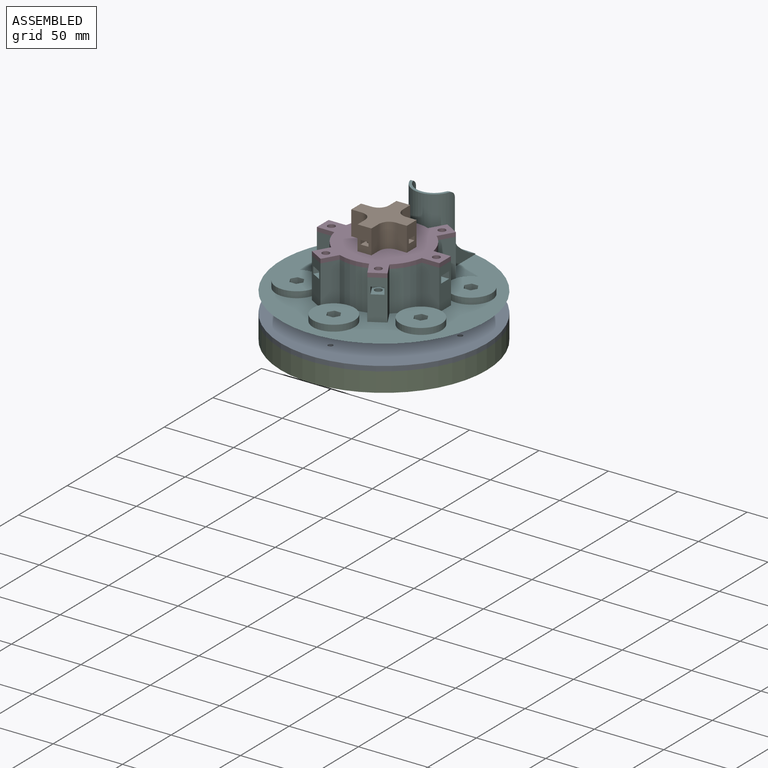
[diagram: assembled view]
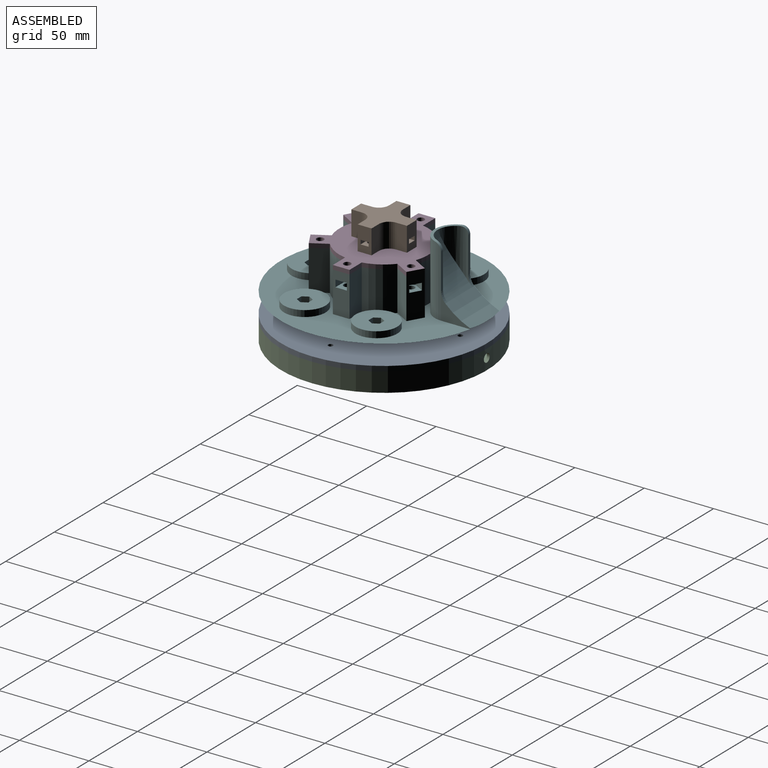
[diagram: assembled view, second angle]
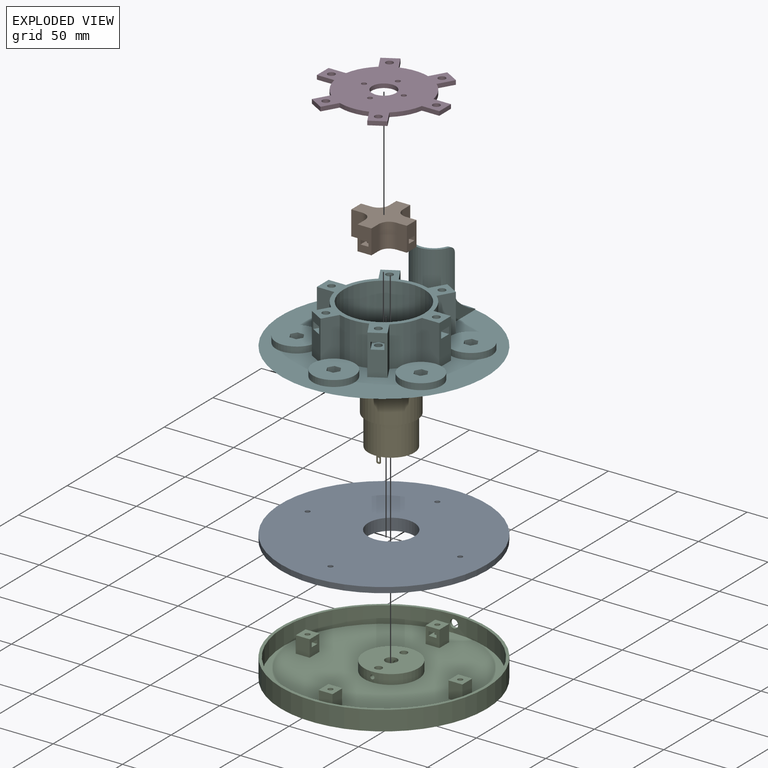
[diagram: exploded view]
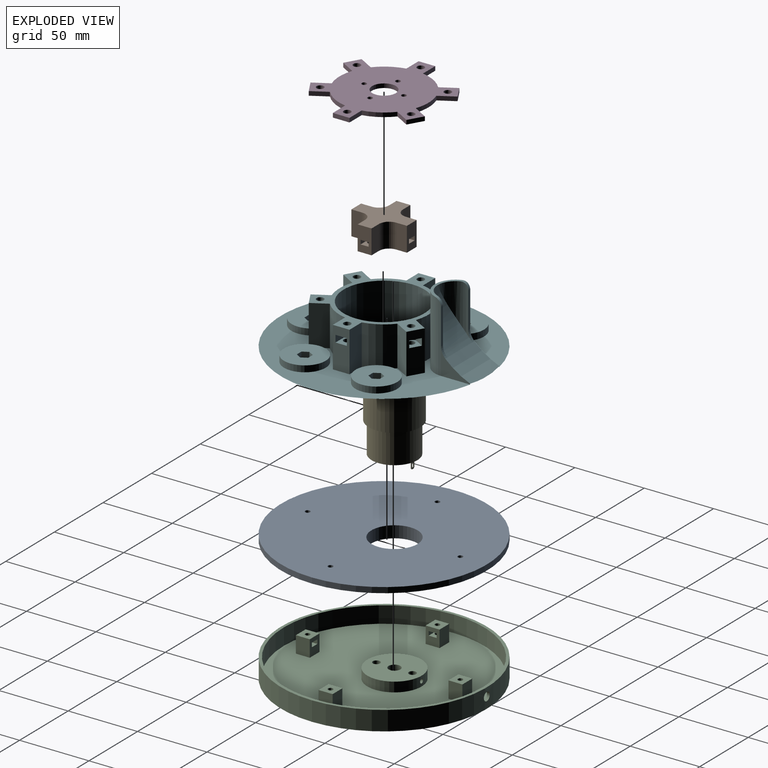
[diagram: exploded view, second angle]
ASSEMBLY  parts=6 mates=5
PART A: 10 faces, bbox 148.2x148.2x8.5 mm
  f0: cylinder r=74.1mm len=148.2mm, axis (0,0,-1), area 1862.3mm2, adj f2,f5
  f1: cylinder r=16.65mm len=33.3mm, axis (0,0,-1), area 889.2mm2, adj f3,f5
  f2: plane 148.2x148.2mm, normal (0,0,-1), area 16118.7mm2, adj f0,f4,f6,f7,f8,f9
  f3: plane 37.3x37.3mm, normal (0,0,-1), area 221.8mm2, adj f1,f4
  f4: cylinder r=18.65mm len=37.3mm, axis (0,0,1), area 527.3mm2, adj f2,f3
  f5: plane 148.2x148.2mm, normal (0,0,1), area 16340.5mm2, adj f0,f1,f6,f7,f8,f9
  f6: cylinder r=1.75mm len=4mm, axis (0,0,1), area 44mm2, adj f2,f5
  f7: cylinder r=1.75mm len=4mm, axis (0,0,1), area 44mm2, adj f2,f5
  f8: cylinder r=1.75mm len=4mm, axis (0,0,1), area 44mm2, adj f2,f5
  f9: cylinder r=1.75mm len=4mm, axis (0,0,1), area 44mm2, adj f2,f5
PART B: 62 faces, bbox 40x40x17.5 mm
  f0: plane 17.5x10mm, normal (1,0,0), area 157.6mm2, adj f4,f9,f10,f11,f22,f23,f24,f27
  f1: plane 17.5x10mm, normal (0,-1,0), area 157.6mm2, adj f4,f9,f12,f13,f46,f47,f48,f51
  f2: plane 17.5x10mm, normal (-1,0,0), area 157.6mm2, adj f4,f9,f14,f15,f38,f39,f40,f43
  f3: plane 17.5x10mm, normal (0,1,0), area 157.6mm2, adj f4,f9,f16,f17,f30,f31,f32,f35
  f4: plane 40x40mm, normal (0,0,1), area 675.6mm2, adj f0,f1,f2,f3,f8,f10,f11,f12
  f5: plane 6.3x5.5mm, normal (0,0,1), area 28.9mm2, adj f7,f8
  f6: plane 4.2x0.8mm, normal (0,0,1), area 2.3mm2, adj f7,f8
  f7: plane 12x4.2mm, normal (0,-1,0), area 50.3mm2, adj f5,f6,f8
  f8: cylinder r=3.15mm len=14.5mm, axis (0,0,1), area 231.9mm2, adj f4,f5,f6,f7
  f9: plane 40x40mm, normal (0,0,-1), area 745.2mm2, adj f0,f1,f2,f3,f10,f11,f12,f13
  f10: plane 17.5x7.55mm, normal (0,1,0), area 132.1mm2, adj f0,f4,f9,f55
  f11: plane 17.5x7.55mm, normal (0,-1,0), area 132.1mm2, adj f0,f4,f9,f57
  f12: plane 17.5x7.55mm, normal (-1,0,0), area 132.1mm2, adj f1,f4,f9,f60
  f13: plane 17.5x7.55mm, normal (1,0,0), area 132.1mm2, adj f1,f4,f9,f56
  f14: plane 17.5x7.55mm, normal (0,1,0), area 132.1mm2, adj f2,f4,f9,f58
  f15: plane 17.5x7.55mm, normal (0,-1,0), area 132.1mm2, adj f2,f4,f9,f61
  f16: plane 17.5x7.55mm, normal (1,0,0), area 132.1mm2, adj f3,f4,f9,f54
  f17: plane 17.5x7.55mm, normal (-1,0,0), area 132.1mm2, adj f3,f4,f9,f59
  f18: cylinder r=1.75mm len=5mm, axis (0,0,1), area 55mm2, adj f4,f47
  f19: cylinder r=1.75mm len=5mm, axis (0,0,1), area 55mm2, adj f4,f39
  f20: cylinder r=1.75mm len=5mm, axis (0,0,1), area 55mm2, adj f4,f31
  f21: cylinder r=1.75mm len=5mm, axis (0,0,1), area 55mm2, adj f4,f23
  f22: plane 9.02x5.8mm, normal (0,0,1), area 37.8mm2, adj f0,f24,f25,f26,f27,f29
  f23: plane 9.02x5.8mm, normal (0,0,-1), area 37.8mm2, adj f0,f21,f24,f25,f26,f27
  f24: plane 7.34x3mm, normal (0,-1,0), area 22mm2, adj f0,f22,f23,f25
  f25: plane 3x2.9mm, normal (0.87,-0.5,0), area 10mm2, adj f22,f23,f24,f26
  f26: plane 3x2.9mm, normal (0.87,0.5,0), area 10mm2, adj f22,f23,f25,f27
  f27: plane 7.34x3mm, normal (0,1,0), area 22mm2, adj f0,f22,f23,f26
  f28: plane 3.5x3.5mm, normal (0,0,1), area 9.6mm2, adj f29
  f29: cylinder r=1.75mm len=8mm, axis (0,0,1), area 88mm2, adj f22,f28
  f30: plane 9.02x5.8mm, normal (0,0,1), area 37.8mm2, adj f3,f32,f33,f34,f35,f37
  f31: plane 9.02x5.8mm, normal (0,0,-1), area 37.8mm2, adj f3,f20,f32,f33,f34,f35
  f32: plane 7.34x3mm, normal (1,0,0), area 22mm2, adj f3,f30,f31,f33
  f33: plane 3x2.9mm, normal (0.5,0.87,0), area 10mm2, adj f30,f31,f32,f34
  f34: plane 3x2.9mm, normal (-0.5,0.87,0), area 10mm2, adj f30,f31,f33,f35
  f35: plane 7.34x3mm, normal (-1,0,0), area 22mm2, adj f3,f30,f31,f34
  f36: plane 3.5x3.5mm, normal (0,0,1), area 9.6mm2, adj f37
  f37: cylinder r=1.75mm len=8mm, axis (0,0,1), area 88mm2, adj f30,f36
  f38: plane 9.02x5.8mm, normal (0,0,1), area 37.8mm2, adj f2,f40,f41,f42,f43,f45
  f39: plane 9.02x5.8mm, normal (0,0,-1), area 37.8mm2, adj f2,f19,f40,f41,f42,f43
  f40: plane 7.34x3mm, normal (0,1,0), area 22mm2, adj f2,f38,f39,f41
  f41: plane 3x2.9mm, normal (-0.87,0.5,0), area 10mm2, adj f38,f39,f40,f42
  f42: plane 3x2.9mm, normal (-0.87,-0.5,0), area 10mm2, adj f38,f39,f41,f43
  f43: plane 7.34x3mm, normal (0,-1,0), area 22mm2, adj f2,f38,f39,f42
  f44: plane 3.5x3.5mm, normal (0,0,1), area 9.6mm2, adj f45
  f45: cylinder r=1.75mm len=8mm, axis (0,0,1), area 88mm2, adj f38,f44
  f46: plane 9.02x5.8mm, normal (0,0,1), area 37.8mm2, adj f1,f48,f49,f50,f51,f53
  f47: plane 9.02x5.8mm, normal (0,0,-1), area 37.8mm2, adj f1,f18,f48,f49,f50,f51
  f48: plane 7.34x3mm, normal (-1,0,0), area 22mm2, adj f1,f46,f47,f49
  f49: plane 3x2.9mm, normal (-0.5,-0.87,0), area 10mm2, adj f46,f47,f48,f50
  f50: plane 3x2.9mm, normal (0.5,-0.87,0), area 10mm2, adj f46,f47,f49,f51
  f51: plane 7.34x3mm, normal (1,0,0), area 22mm2, adj f1,f46,f47,f50
  f52: plane 3.5x3.5mm, normal (0,0,1), area 9.6mm2, adj f53
  f53: cylinder r=1.75mm len=8mm, axis (0,0,1), area 88mm2, adj f46,f52
  f54: cylinder r=8mm len=17.5mm, axis (0,0,-1), area 103.1mm2, adj f4,f9,f16,f55
  f55: cylinder r=8mm len=17.5mm, axis (0,0,-1), area 103.1mm2, adj f4,f9,f10,f54
  f56: cylinder r=8mm len=17.5mm, axis (0,0,-1), area 103.1mm2, adj f4,f9,f13,f57
  f57: cylinder r=8mm len=17.5mm, axis (0,0,-1), area 103.1mm2, adj f4,f9,f11,f56
  f58: cylinder r=8mm len=17.5mm, axis (0,0,-1), area 103.1mm2, adj f4,f9,f14,f59
  f59: cylinder r=8mm len=17.5mm, axis (0,0,-1), area 103.1mm2, adj f4,f9,f17,f58
  f60: cylinder r=8mm len=17.5mm, axis (0,0,-1), area 103.1mm2, adj f4,f9,f12,f61
  f61: cylinder r=8mm len=17.5mm, axis (0,0,-1), area 103.1mm2, adj f4,f9,f15,f60
PART C: 67 faces, bbox 148.2x148.2x14 mm
  f0: cylinder r=74.1mm len=148.2mm, axis (0,0,-1), area 6489.9mm2, adj f11,f12,f66
  f1: cylinder r=72.1mm len=144.2mm, axis (0,0,1), area 5407.9mm2, adj f6,f12,f66
  f2: plane 12x10mm, normal (0,1,0), area 102.9mm2, adj f6,f14,f15,f16,f48,f49,f52,f53
  f3: plane 12x10mm, normal (0,-1,0), area 102.9mm2, adj f6,f18,f19,f21,f42,f45,f46,f47
  f4: plane 12x10mm, normal (1,0,0), area 102.9mm2, adj f6,f22,f24,f25,f36,f39,f40,f41
  f5: plane 12x10mm, normal (-1,0,0), area 102.9mm2, adj f6,f26,f27,f28,f30,f31,f34,f35
  f6: plane 144.2x144.2mm, normal (0,0,1), area 14730.6mm2, adj f1,f2,f3,f4,f5,f10,f15,f16
  f7: cylinder r=2.6mm len=9mm, axis (0,0,-1), area 132.3mm2, adj f11,f13,f63,f65
  f8: cylinder r=2.6mm len=9mm, axis (0,0,-1), area 132.3mm2, adj f11,f13,f62,f64
  f9: cylinder r=4.25mm len=9mm, axis (0,0,-1), area 226mm2, adj f11,f13,f64,f65
  f10: cylinder r=19.55mm len=39.1mm, axis (0,0,1), area 845.7mm2, adj f6,f13,f62,f63
  f11: plane 148.2x148.2mm, normal (0,0,-1), area 17112.2mm2, adj f0,f7,f8,f9,f55,f57,f59,f61
  f12: plane 148.2x148.2mm, normal (0,0,1), area 918.6mm2, adj f0,f1
  f13: plane 39.1x39.1mm, normal (0,0,1), area 1101.5mm2, adj f7,f8,f9,f10
  f14: plane 10x10mm, normal (0,0,1), area 90.4mm2, adj f2,f15,f16,f17,f54
  f15: plane 12x10mm, normal (-1,0,0), area 120mm2, adj f2,f6,f14,f17
  f16: plane 12x10mm, normal (1,0,0), area 120mm2, adj f2,f6,f14,f17
  f17: plane 12x10mm, normal (0,-1,0), area 120mm2, adj f6,f14,f15,f16
  f18: plane 10x10mm, normal (0,0,1), area 90.4mm2, adj f3,f19,f20,f21,f56
  f19: plane 12x10mm, normal (1,0,0), area 120mm2, adj f3,f6,f18,f20
  f20: plane 12x10mm, normal (0,1,0), area 120mm2, adj f6,f18,f19,f21
  f21: plane 12x10mm, normal (-1,0,0), area 120mm2, adj f3,f6,f18,f20
  f22: plane 10x10mm, normal (0,0,1), area 90.4mm2, adj f4,f23,f24,f25,f58
  f23: plane 12x10mm, normal (-1,0,0), area 120mm2, adj f6,f22,f24,f25
  f24: plane 12x10mm, normal (0,-1,0), area 120mm2, adj f4,f6,f22,f23
  f25: plane 12x10mm, normal (0,1,0), area 120mm2, adj f4,f6,f22,f23
  f26: plane 10x10mm, normal (0,0,1), area 90.4mm2, adj f5,f27,f28,f29,f60
  f27: plane 12x10mm, normal (0,-1,0), area 120mm2, adj f5,f6,f26,f29
  f28: plane 12x10mm, normal (0,1,0), area 120mm2, adj f5,f6,f26,f29
  f29: plane 12x10mm, normal (1,0,0), area 120mm2, adj f6,f26,f27,f28
  f30: plane 6.65x3mm, normal (0,-1,0), area 19.9mm2, adj f5,f33,f34,f35
  f31: plane 6.65x3mm, normal (0,1,0), area 19.9mm2, adj f5,f32,f34,f35
  f32: plane 3x2.85mm, normal (-0.87,0.5,0), area 9.9mm2, adj f31,f33,f34,f35
  f33: plane 3x2.85mm, normal (-0.87,-0.5,0), area 9.9mm2, adj f30,f32,f34,f35
  f34: plane 8.29x5.7mm, normal (0,0,1), area 32.9mm2, adj f5,f30,f31,f32,f33,f61
  f35: plane 8.29x5.7mm, normal (0,0,-1), area 32.9mm2, adj f5,f30,f31,f32,f33,f60
  f36: plane 6.65x3mm, normal (0,-1,0), area 19.9mm2, adj f4,f37,f40,f41
  f37: plane 3x2.85mm, normal (0.87,-0.5,0), area 9.9mm2, adj f36,f38,f40,f41
  f38: plane 3x2.85mm, normal (0.87,0.5,0), area 9.9mm2, adj f37,f39,f40,f41
  f39: plane 6.65x3mm, normal (0,1,0), area 19.9mm2, adj f4,f38,f40,f41
  f40: plane 8.29x5.7mm, normal (0,0,1), area 32.9mm2, adj f4,f36,f37,f38,f39,f59
  f41: plane 8.29x5.7mm, normal (0,0,-1), area 32.9mm2, adj f4,f36,f37,f38,f39,f58
  f42: plane 6.65x3mm, normal (-1,0,0), area 19.9mm2, adj f3,f43,f46,f47
  f43: plane 3x2.85mm, normal (-0.5,-0.87,0), area 9.9mm2, adj f42,f44,f46,f47
  f44: plane 3x2.85mm, normal (0.5,-0.87,0), area 9.9mm2, adj f43,f45,f46,f47
  f45: plane 6.65x3mm, normal (1,0,0), area 19.9mm2, adj f3,f44,f46,f47
  f46: plane 8.29x5.7mm, normal (0,0,1), area 32.9mm2, adj f3,f42,f43,f44,f45,f57
  f47: plane 8.29x5.7mm, normal (0,0,-1), area 32.9mm2, adj f3,f42,f43,f44,f45,f56
  f48: plane 6.65x3mm, normal (-1,0,0), area 19.9mm2, adj f2,f51,f52,f53
  f49: plane 6.65x3mm, normal (1,0,0), area 19.9mm2, adj f2,f50,f52,f53
  f50: plane 3x2.85mm, normal (0.5,0.87,0), area 9.9mm2, adj f49,f51,f52,f53
  f51: plane 3x2.85mm, normal (-0.5,0.87,0), area 9.9mm2, adj f48,f50,f52,f53
  f52: plane 8.29x5.7mm, normal (0,0,1), area 32.9mm2, adj f2,f48,f49,f50,f51,f55
  f53: plane 8.29x5.7mm, normal (0,0,-1), area 32.9mm2, adj f2,f48,f49,f50,f51,f54
  f54: cylinder r=1.75mm len=3.5mm, axis (0,0,1), area 33mm2, adj f14,f53
  f55: cylinder r=1.75mm len=8mm, axis (0,0,1), area 88mm2, adj f11,f52
  f56: cylinder r=1.75mm len=3.5mm, axis (0,0,1), area 33mm2, adj f18,f47
  f57: cylinder r=1.75mm len=8mm, axis (0,0,1), area 88mm2, adj f11,f46
  f58: cylinder r=1.75mm len=3.5mm, axis (0,0,1), area 33mm2, adj f22,f41
  f59: cylinder r=1.75mm len=8mm, axis (0,0,1), area 88mm2, adj f11,f40
  f60: cylinder r=1.75mm len=3.5mm, axis (0,0,1), area 33mm2, adj f26,f35
  f61: cylinder r=1.75mm len=8mm, axis (0,0,1), area 88mm2, adj f11,f34
  f62: cylinder r=1.5mm len=4.43mm, axis (0,-1,0), area 39.1mm2, adj f8,f10
  f63: cylinder r=1.5mm len=4.43mm, axis (0,-1,0), area 39.1mm2, adj f7,f10
  f64: cylinder r=1.5mm len=6.9mm, axis (0,-1,0), area 61.4mm2, adj f8,f9
  f65: cylinder r=1.5mm len=6.9mm, axis (0,-1,0), area 61.4mm2, adj f7,f9
  f66: cylinder r=3mm len=6mm, axis (0,-1,0), area 37.7mm2, adj f0,f1
PART D: 37 faces, bbox 88.2x82.4x3 mm
  f0: plane 12.57x3mm, normal (0,1,0), area 37.7mm2, adj f1,f24,f25,f26
  f1: cylinder r=32.1mm len=18.31mm, axis (0,0,-1), area 64.6mm2, adj f0,f2,f25,f26
  f2: plane 10.88x6.28mm, normal (0.87,-0.5,0), area 37.7mm2, adj f1,f3,f25,f26
  f3: plane 10.39x6mm, normal (0.5,0.87,0), area 36mm2, adj f2,f4,f25,f26
  f4: plane 10.88x6.28mm, normal (-0.87,0.5,0), area 37.7mm2, adj f3,f5,f25,f26
  f5: cylinder r=32.1mm len=21.14mm, axis (0,0,-1), area 64.6mm2, adj f4,f6,f25,f26
  f6: plane 10.88x6.28mm, normal (0.87,0.5,0), area 37.7mm2, adj f5,f7,f25,f26
  f7: plane 10.39x6mm, normal (-0.5,0.87,0), area 36mm2, adj f6,f8,f25,f26
  f8: plane 10.88x6.28mm, normal (-0.87,-0.5,0), area 37.7mm2, adj f7,f9,f25,f26
  f9: cylinder r=32.1mm len=18.31mm, axis (0,0,-1), area 64.6mm2, adj f8,f10,f25,f26
  f10: plane 12.57x3mm, normal (0,1,0), area 37.7mm2, adj f9,f11,f25,f26
  f11: plane 12x3mm, normal (-1,0,0), area 36mm2, adj f10,f12,f25,f26
  f12: plane 12.57x3mm, normal (0,-1,0), area 37.7mm2, adj f11,f13,f25,f26
  f13: cylinder r=32.1mm len=18.31mm, axis (0,0,-1), area 64.6mm2, adj f12,f14,f25,f26
  f14: plane 10.88x6.28mm, normal (-0.87,0.5,0), area 37.7mm2, adj f13,f15,f25,f26
  f15: plane 10.39x6mm, normal (-0.5,-0.87,0), area 36mm2, adj f14,f16,f25,f26
  f16: plane 10.88x6.28mm, normal (0.87,-0.5,0), area 37.7mm2, adj f15,f17,f25,f26
  f17: cylinder r=32.1mm len=21.14mm, axis (0,0,-1), area 64.6mm2, adj f16,f18,f25,f26
  f18: plane 10.88x6.28mm, normal (-0.87,-0.5,0), area 37.7mm2, adj f17,f19,f25,f26
  f19: plane 10.39x6mm, normal (0.5,-0.87,0), area 36mm2, adj f18,f20,f25,f26
  f20: plane 10.88x6.28mm, normal (0.87,0.5,0), area 37.7mm2, adj f19,f21,f25,f26
  f21: cylinder r=32.1mm len=18.31mm, axis (0,0,-1), area 64.6mm2, adj f20,f22,f25,f26
  f22: plane 12.57x3mm, normal (0,-1,0), area 37.7mm2, adj f21,f24,f25,f26
  f23: cylinder r=8.57mm len=17.14mm, axis (0,0,-1), area 161.6mm2, adj f25,f26
  f24: plane 12x3mm, normal (1,0,0), area 36mm2, adj f0,f22,f25,f26
  f25: plane 88.2x82.38mm, normal (0,0,1), area 3717.9mm2, adj f0,f1,f2,f3,f4,f5,f6,f7
  f26: plane 88.2x82.38mm, normal (0,0,-1), area 3717.9mm2, adj f0,f1,f2,f3,f4,f5,f6,f7
  f27: cylinder r=2.6mm len=5.2mm, axis (0,0,1), area 49mm2, adj f25,f26
  f28: cylinder r=2.6mm len=5.2mm, axis (0,0,1), area 49mm2, adj f25,f26
  f29: cylinder r=2.6mm len=5.2mm, axis (0,0,1), area 49mm2, adj f25,f26
  f30: cylinder r=2.6mm len=5.2mm, axis (0,0,1), area 49mm2, adj f25,f26
  f31: cylinder r=2.6mm len=5.2mm, axis (0,0,1), area 49mm2, adj f25,f26
  f32: cylinder r=2.6mm len=5.2mm, axis (0,0,1), area 49mm2, adj f25,f26
  f33: cylinder r=1.75mm len=3.5mm, axis (0,0,1), area 33mm2, adj f25,f26
  f34: cylinder r=1.75mm len=3.5mm, axis (0,0,1), area 33mm2, adj f25,f26
  f35: cylinder r=1.75mm len=3.5mm, axis (0,0,1), area 33mm2, adj f25,f26
  f36: cylinder r=1.75mm len=3.5mm, axis (0,0,1), area 33mm2, adj f25,f26
PART E: 61 faces, bbox 37.1x37.1x76 mm
  f0: plane 7.98x3.34mm, normal (0,0,-1), area 20.1mm2, adj f8,f34
  f1: plane 4.8x4.8mm, normal (0,0,-1), area 16.6mm2, adj f11,f17,f18,f19,f20
  f2: plane 4.8x4.8mm, normal (0,0,-1), area 16.6mm2, adj f10,f12,f13,f14,f15
  f3: cylinder r=18.55mm len=37.1mm, axis (0,0,1), area 3030.4mm2, adj f4,f5
  f4: plane 37.1x37.1mm, normal (0,0,-1), area 230.9mm2, adj f3,f6
  f5: plane 37.1x37.1mm, normal (0,0,1), area 906.9mm2, adj f3,f35,f55,f56,f57,f58,f59,f60
  f6: cylinder r=16.45mm len=32.9mm, axis (0,0,1), area 2273.9mm2, adj f4,f7
  f7: plane 32.9x32.9mm, normal (0,0,-1), area 762.4mm2, adj f6,f8,f10,f11
  f8: cylinder r=4.05mm len=8.1mm, axis (0,0,1), area 75.3mm2, adj f0,f7,f9,f34
  f9: plane 7.98x3.34mm, normal (0,0,-1), area 20.1mm2, adj f8,f34
  f10: cylinder r=2.4mm len=4.8mm, axis (0,0,1), area 7.5mm2, adj f2,f7
  f11: cylinder r=2.4mm len=4.8mm, axis (0,0,1), area 7.5mm2, adj f1,f7
  f12: plane 6x3mm, normal (0,-1,0), area 13.5mm2, adj f2,f13,f15,f16,f22,f23,f30,f31
  f13: plane 5.3x0.5mm, normal (-1,0,0), area 2.7mm2, adj f2,f12,f14,f23
  f14: plane 6x3mm, normal (0,1,0), area 13.5mm2, adj f2,f13,f15,f16,f22,f23,f30,f31
  f15: plane 5.3x0.5mm, normal (1,0,0), area 2.7mm2, adj f2,f12,f14,f22
  f16: plane 1.6x0.5mm, normal (0,0,-1), area 0.8mm2, adj f12,f14,f22,f23
  f17: plane 5.3x0.5mm, normal (-1,0,0), area 2.7mm2, adj f1,f18,f20,f25
  f18: plane 6x3mm, normal (0,1,0), area 13.5mm2, adj f1,f17,f19,f21,f24,f25,f26,f27
  f19: plane 5.3x0.5mm, normal (1,0,0), area 2.7mm2, adj f1,f18,f20,f24
  f20: plane 6x3mm, normal (0,-1,0), area 13.5mm2, adj f1,f17,f19,f21,f24,f25,f26,f27
  f21: plane 1.6x0.5mm, normal (0,0,-1), area 0.8mm2, adj f18,f20,f24,f25
  f22: plane 0.7x0.7mm, normal (0.71,0,-0.71), area 0.5mm2, adj f12,f14,f15,f16
  f23: plane 0.7x0.7mm, normal (-0.71,0,-0.71), area 0.5mm2, adj f12,f13,f14,f16
  f24: plane 0.7x0.7mm, normal (0.71,0,-0.71), area 0.5mm2, adj f18,f19,f20,f21
  f25: plane 0.7x0.7mm, normal (-0.71,0,-0.71), area 0.5mm2, adj f17,f18,f20,f21
  f26: plane 1.5x0.5mm, normal (-1,0,0), area 0.8mm2, adj f18,f20,f27,f29
  f27: cylinder r=0.75mm len=1.5mm, axis (0,-1,0), area 1.2mm2, adj f18,f20,f26,f28
  f28: plane 1.5x0.5mm, normal (1,0,0), area 0.8mm2, adj f18,f20,f27,f29
  f29: cylinder r=0.75mm len=1.5mm, axis (0,-1,0), area 1.2mm2, adj f18,f20,f26,f28
  f30: plane 1.5x0.5mm, normal (-1,0,0), area 0.8mm2, adj f12,f14,f31,f33
  f31: cylinder r=0.75mm len=1.5mm, axis (0,-1,0), area 1.2mm2, adj f12,f14,f30,f32
  f32: plane 1.5x0.5mm, normal (1,0,0), area 0.8mm2, adj f12,f14,f31,f33
  f33: cylinder r=0.75mm len=1.5mm, axis (0,-1,0), area 1.2mm2, adj f12,f14,f30,f32
  f34: cylinder r=0.75mm len=8.1mm, axis (0,-1,0), area 14.9mm2, adj f0,f8,f9
  f35: cylinder r=6mm len=12mm, axis (0,0,-1), area 226.2mm2, adj f5,f36
  f36: plane 12x12mm, normal (0,0,1), area 84.8mm2, adj f35,f37
  f37: cylinder r=3mm len=15.3mm, axis (0,0,-1), area 244.8mm2, adj f36,f39,f40,f42
  f38: plane 5.6x5.05mm, normal (0,0,1), area 23.4mm2, adj f41,f42
  f39: plane 11.8x3.46mm, normal (0,-1,0), area 40.9mm2, adj f37,f40,f41
  f40: plane 3.46x0.55mm, normal (0,0,1), area 1.3mm2, adj f37,f39
  f41: plane 3.46x0.2mm, normal (0,-0.71,0.71), area 1mm2, adj f38,f39,f42
  f42: cone r=2.8mm half-angle=45deg, axis (0,0,-1), area 4.1mm2, adj f37,f38,f41
  f43: cylinder r=1.5mm len=3.7mm, axis (0,0,1), area 34.9mm2, adj f44,f58
  f44: plane 3x3mm, normal (0,0,1), area 7.1mm2, adj f43
  f45: cylinder r=1.5mm len=3.7mm, axis (0,0,1), area 34.9mm2, adj f46,f59
  f46: plane 3x3mm, normal (0,0,1), area 7.1mm2, adj f45
  f47: cylinder r=1.5mm len=3.7mm, axis (0,0,1), area 34.9mm2, adj f48,f60
  f48: plane 3x3mm, normal (0,0,1), area 7.1mm2, adj f47
  f49: cylinder r=1.5mm len=3.7mm, axis (0,0,1), area 34.9mm2, adj f50,f55
  f50: plane 3x3mm, normal (0,0,1), area 7.1mm2, adj f49
  f51: cylinder r=1.5mm len=3.7mm, axis (0,0,1), area 34.9mm2, adj f52,f56
  f52: plane 3x3mm, normal (0,0,1), area 7.1mm2, adj f51
  f53: cylinder r=1.5mm len=3.7mm, axis (0,0,1), area 34.9mm2, adj f54,f57
  f54: plane 3x3mm, normal (0,0,1), area 7.1mm2, adj f53
  f55: cone r=1.5mm half-angle=45deg, axis (0,0,1), area 4.4mm2, adj f5,f49
  f56: cone r=1.5mm half-angle=45deg, axis (0,0,1), area 4.4mm2, adj f5,f51
  f57: cone r=1.5mm half-angle=45deg, axis (0,0,1), area 4.4mm2, adj f5,f53
  f58: cone r=1.5mm half-angle=45deg, axis (0,0,1), area 4.4mm2, adj f5,f43
  f59: cone r=1.5mm half-angle=45deg, axis (0,0,1), area 4.4mm2, adj f5,f45
  f60: cone r=1.5mm half-angle=45deg, axis (0,0,1), area 4.4mm2, adj f5,f47
PART F: 147 faces, bbox 444.6x444.6x349.4 mm
  f0: plane 444.6x443.07mm, normal (0,0,1), area 8587.8mm2, adj f1,f12,f13,f14,f15,f119,f120,f121
  f1: plane 20.97x19.21mm, normal (1,0,0), area 140.9mm2, adj f0,f2,f11,f12,f14
  f2: cylinder r=10mm len=7.17mm, axis (1,0,0), area 16.6mm2, adj f1,f3,f10,f11
  f3: cylinder r=13mm len=37.96mm, axis (0,0,-1), area 383mm2, adj f2,f4,f9,f10,f11
  f4: plane 28.28x10mm, normal (0,0,1), area 67.5mm2, adj f3,f5,f8,f9,f14
  f5: cylinder r=5mm len=5mm, axis (1,0,0), area 16mm2, adj f4,f6,f8,f14
  f6: plane 25.79x2mm, normal (0,1,0), area 51.6mm2, adj f5,f7,f8,f14
  f7: cylinder r=10mm len=7.17mm, axis (1,0,0), area 16.6mm2, adj f6,f8,f11,f13
  f8: cylinder r=13mm len=37.96mm, axis (0,0,-1), area 383mm2, adj f4,f5,f6,f7,f11
  f9: cylinder r=5mm len=5mm, axis (1,0,0), area 16mm2, adj f3,f4,f10,f14
  f10: plane 25.79x2mm, normal (0,1,0), area 51.6mm2, adj f2,f3,f9,f14
  f11: cylinder r=52.96mm len=50mm, axis (1,0,0), area 1395.8mm2, adj f1,f2,f3,f7,f8,f12,f13
  f12: cylinder r=74.1mm len=146.67mm, axis (0,0,-1), area 59.9mm2, adj f0,f1,f11,f13
  f13: plane 317.37x315.61mm, normal (-1,0,0), area 140.9mm2, adj f0,f7,f11,f12,f14
  f14: cylinder r=15mm len=50mm, axis (0,0,-1), area 2345.4mm2, adj f0,f1,f4,f5,f6,f9,f10,f13
  f15: plane 29x12.57mm, normal (0,-1,0), area 364.4mm2, adj f0,f16,f119,f141
  f16: plane 88.2x82.38mm, normal (0,0,1), area 1326.9mm2, adj f15,f17,f65,f74,f83,f92,f101,f110
  f17: cylinder r=29.1mm len=58.2mm, axis (0,0,-1), area 5850.9mm2, adj f16,f18
  f18: plane 444.6x444.6mm, normal (0,0,-1), area 14479.2mm2, adj f17,f19,f20,f29,f38,f47,f56
  f19: cylinder r=74.1mm len=72.57mm, axis (0,0,-1), area 0mm2, adj f18
  f20: cylinder r=2.65mm len=5.3mm, axis (0,0,1), area 50mm2, adj f18,f21
  f21: plane 9.47x8.2mm, normal (0,0,1), area 36.2mm2, adj f20,f22,f24,f25,f26,f27,f28
  f22: plane 4.5x4.1mm, normal (0.87,-0.5,0), area 21.3mm2, adj f21,f23,f24,f28
  f23: plane 30x30mm, normal (0,0,1), area 648.6mm2, adj f22,f24,f25,f26,f27,f28,f145
  f24: plane 4.73x4.5mm, normal (0,-1,0), area 21.3mm2, adj f21,f22,f23,f25
  f25: plane 4.5x4.1mm, normal (-0.87,-0.5,0), area 21.3mm2, adj f21,f23,f24,f26
  f26: plane 4.5x4.1mm, normal (-0.87,0.5,0), area 21.3mm2, adj f21,f23,f25,f27
  f27: plane 4.73x4.5mm, normal (0,1,0), area 21.3mm2, adj f21,f23,f26,f28
  f28: plane 4.5x4.1mm, normal (0.87,0.5,0), area 21.3mm2, adj f21,f22,f23,f27
  f29: cylinder r=2.65mm len=5.3mm, axis (0,0,1), area 50mm2, adj f18,f30
  f30: plane 9.47x8.2mm, normal (0,0,1), area 36.2mm2, adj f29,f31,f33,f34,f35,f36,f37
  f31: plane 4.73x4.5mm, normal (0,1,0), area 21.3mm2, adj f30,f32,f33,f37
  f32: plane 30x30mm, normal (0,0,1), area 648.6mm2, adj f31,f33,f34,f35,f36,f37,f144
  f33: plane 4.5x4.1mm, normal (0.87,0.5,0), area 21.3mm2, adj f30,f31,f32,f34
  f34: plane 4.5x4.1mm, normal (0.87,-0.5,0), area 21.3mm2, adj f30,f32,f33,f35
  f35: plane 4.73x4.5mm, normal (0,-1,0), area 21.3mm2, adj f30,f32,f34,f36
  f36: plane 4.5x4.1mm, normal (-0.87,-0.5,0), area 21.3mm2, adj f30,f32,f35,f37
  f37: plane 4.5x4.1mm, normal (-0.87,0.5,0), area 21.3mm2, adj f30,f31,f32,f36
  f38: cylinder r=2.65mm len=5.3mm, axis (0,0,1), area 50mm2, adj f18,f39
  f39: plane 9.47x8.2mm, normal (0,0,1), area 36.2mm2, adj f38,f40,f42,f43,f44,f45,f46
  f40: plane 4.5x4.1mm, normal (-0.87,0.5,0), area 21.3mm2, adj f39,f41,f42,f46
  f41: plane 30x30mm, normal (0,0,1), area 648.6mm2, adj f40,f42,f43,f44,f45,f46,f143
  f42: plane 4.73x4.5mm, normal (0,1,0), area 21.3mm2, adj f39,f40,f41,f43
  f43: plane 4.5x4.1mm, normal (0.87,0.5,0), area 21.3mm2, adj f39,f41,f42,f44
  f44: plane 4.5x4.1mm, normal (0.87,-0.5,0), area 21.3mm2, adj f39,f41,f43,f45
  f45: plane 4.73x4.5mm, normal (0,-1,0), area 21.3mm2, adj f39,f41,f44,f46
  f46: plane 4.5x4.1mm, normal (-0.87,-0.5,0), area 21.3mm2, adj f39,f40,f41,f45
  f47: cylinder r=2.65mm len=5.3mm, axis (0,0,1), area 50mm2, adj f18,f48
  f48: plane 9.47x8.2mm, normal (0,0,1), area 36.2mm2, adj f47,f49,f51,f52,f53,f54,f55
  f49: plane 4.5x4.1mm, normal (-0.87,0.5,0), area 21.3mm2, adj f48,f50,f51,f55
  f50: plane 30x30mm, normal (0,0,1), area 648.6mm2, adj f49,f51,f52,f53,f54,f55,f142
  f51: plane 4.73x4.5mm, normal (0,1,0), area 21.3mm2, adj f48,f49,f50,f52
  f52: plane 4.5x4.1mm, normal (0.87,0.5,0), area 21.3mm2, adj f48,f50,f51,f53
  f53: plane 4.5x4.1mm, normal (0.87,-0.5,0), area 21.3mm2, adj f48,f50,f52,f54
  f54: plane 4.73x4.5mm, normal (0,-1,0), area 21.3mm2, adj f48,f50,f53,f55
  f55: plane 4.5x4.1mm, normal (-0.87,-0.5,0), area 21.3mm2, adj f48,f49,f50,f54
  f56: cylinder r=2.65mm len=5.3mm, axis (0,0,1), area 50mm2, adj f18,f57
  f57: plane 9.47x8.2mm, normal (0,0,1), area 36.2mm2, adj f56,f58,f60,f61,f62,f63,f64
  f58: plane 4.73x4.5mm, normal (0,-1,0), area 21.3mm2, adj f57,f59,f60,f64
  f59: plane 30x30mm, normal (0,0,1), area 648.6mm2, adj f58,f60,f61,f62,f63,f64,f146
  f60: plane 4.5x4.1mm, normal (-0.87,-0.5,0), area 21.3mm2, adj f57,f58,f59,f61
  f61: plane 4.5x4.1mm, normal (-0.87,0.5,0), area 21.3mm2, adj f57,f59,f60,f62
  f62: plane 4.73x4.5mm, normal (0,1,0), area 21.3mm2, adj f57,f59,f61,f63
  f63: plane 4.5x4.1mm, normal (0.87,0.5,0), area 21.3mm2, adj f57,f59,f62,f64
  f64: plane 4.5x4.1mm, normal (0.87,-0.5,0), area 21.3mm2, adj f57,f58,f59,f63
  f65: cylinder r=2.6mm len=6mm, axis (0,0,1), area 98mm2, adj f16,f66
  f66: plane 11.59x11.43mm, normal (0,0,-1), area 59.4mm2, adj f65,f67,f71,f72,f73,f123
  f67: plane 5x4.1mm, normal (0.87,0.5,0), area 23.7mm2, adj f66,f68,f71,f73
  f68: plane 11.59x11.43mm, normal (0,0,1), area 59.4mm2, adj f67,f69,f71,f72,f73,f123
  f69: cylinder r=2.6mm len=9mm, axis (0,0,1), area 147mm2, adj f68,f70
  f70: plane 5.2x5.2mm, normal (0,0,1), area 21.2mm2, adj f69
  f71: plane 5x4.73mm, normal (0,1,0), area 23.7mm2, adj f66,f67,f68,f72
  f72: plane 7.49x5mm, normal (-0.87,0.5,0), area 43.3mm2, adj f66,f68,f71,f123
  f73: plane 7.49x5mm, normal (0.87,-0.5,0), area 43.3mm2, adj f66,f67,f68,f123
  f74: cylinder r=2.6mm len=6mm, axis (0,0,1), area 98mm2, adj f16,f75
  f75: plane 11.59x11.43mm, normal (0,0,-1), area 59.4mm2, adj f74,f76,f80,f81,f82,f127
  f76: plane 5x4.73mm, normal (0,1,0), area 23.7mm2, adj f75,f77,f80,f82
  f77: plane 11.59x11.43mm, normal (0,0,1), area 59.4mm2, adj f76,f78,f80,f81,f82,f127
  f78: cylinder r=2.6mm len=9mm, axis (0,0,1), area 147mm2, adj f77,f79
  f79: plane 5.2x5.2mm, normal (0,0,1), area 21.2mm2, adj f78
  f80: plane 5x4.1mm, normal (-0.87,0.5,0), area 23.7mm2, adj f75,f76,f77,f81
  f81: plane 7.49x5mm, normal (-0.87,-0.5,0), area 43.3mm2, adj f75,f77,f80,f127
  f82: plane 7.49x5mm, normal (0.87,0.5,0), area 43.3mm2, adj f75,f76,f77,f127
  f83: cylinder r=2.6mm len=6mm, axis (0,0,1), area 98mm2, adj f16,f84
  f84: plane 11.02x8.2mm, normal (0,0,-1), area 59.4mm2, adj f83,f85,f89,f90,f91,f131
  f85: plane 5x4.1mm, normal (-0.87,0.5,0), area 23.7mm2, adj f84,f86,f89,f91
  f86: plane 11.02x8.2mm, normal (0,0,1), area 59.4mm2, adj f85,f87,f89,f90,f91,f131
  f87: cylinder r=2.6mm len=9mm, axis (0,0,1), area 147mm2, adj f86,f88
  f88: plane 5.2x5.2mm, normal (0,0,1), area 21.2mm2, adj f87
  f89: plane 5x4.1mm, normal (-0.87,-0.5,0), area 23.7mm2, adj f84,f85,f86,f90
  f90: plane 8.65x5mm, normal (0,-1,0), area 43.3mm2, adj f84,f86,f89,f131
  f91: plane 8.65x5mm, normal (0,1,0), area 43.3mm2, adj f84,f85,f86,f131
  f92: cylinder r=2.6mm len=6mm, axis (0,0,1), area 98mm2, adj f16,f93
  f93: plane 11.59x11.43mm, normal (0,0,-1), area 59.4mm2, adj f92,f94,f98,f99,f100,f135
  f94: plane 5x4.1mm, normal (-0.87,-0.5,0), area 23.7mm2, adj f93,f95,f98,f100
  f95: plane 11.59x11.43mm, normal (0,0,1), area 59.4mm2, adj f94,f96,f98,f99,f100,f135
  f96: cylinder r=2.6mm len=9mm, axis (0,0,1), area 147mm2, adj f95,f97
  f97: plane 5.2x5.2mm, normal (0,0,1), area 21.2mm2, adj f96
  f98: plane 5x4.73mm, normal (0,-1,0), area 23.7mm2, adj f93,f94,f95,f99
  f99: plane 7.49x5mm, normal (0.87,-0.5,0), area 43.3mm2, adj f93,f95,f98,f135
  f100: plane 7.49x5mm, normal (-0.87,0.5,0), area 43.3mm2, adj f93,f94,f95,f135
  f101: cylinder r=2.6mm len=6mm, axis (0,0,1), area 98mm2, adj f16,f102
  f102: plane 11.59x11.43mm, normal (0,0,-1), area 59.4mm2, adj f101,f103,f107,f108,f109,f139
  f103: plane 5x4.73mm, normal (0,-1,0), area 23.7mm2, adj f102,f104,f107,f109
  f104: plane 11.59x11.43mm, normal (0,0,1), area 59.4mm2, adj f103,f105,f107,f108,f109,f139
  f105: cylinder r=2.6mm len=9mm, axis (0,0,1), area 147mm2, adj f104,f106
  f106: plane 5.2x5.2mm, normal (0,0,1), area 21.2mm2, adj f105
  f107: plane 5x4.1mm, normal (0.87,-0.5,0), area 23.7mm2, adj f102,f103,f104,f108
  f108: plane 7.49x5mm, normal (0.87,0.5,0), area 43.3mm2, adj f102,f104,f107,f139
  f109: plane 7.49x5mm, normal (-0.87,-0.5,0), area 43.3mm2, adj f102,f103,f104,f139
  f110: cylinder r=2.6mm len=6mm, axis (0,0,1), area 98mm2, adj f16,f111
  f111: plane 11.02x8.2mm, normal (0,0,-1), area 59.4mm2, adj f110,f112,f116,f117,f118,f119
  f112: plane 5x4.1mm, normal (0.87,-0.5,0), area 23.7mm2, adj f111,f113,f116,f118
  f113: plane 11.02x8.2mm, normal (0,0,1), area 59.4mm2, adj f112,f114,f116,f117,f118,f119
  f114: cylinder r=2.6mm len=9mm, axis (0,0,1), area 147mm2, adj f113,f115
  f115: plane 5.2x5.2mm, normal (0,0,1), area 21.2mm2, adj f114
  f116: plane 5x4.1mm, normal (0.87,0.5,0), area 23.7mm2, adj f111,f112,f113,f117
  f117: plane 8.65x5mm, normal (0,1,0), area 43.3mm2, adj f111,f113,f116,f119
  f118: plane 8.65x5mm, normal (0,-1,0), area 43.3mm2, adj f111,f112,f113,f119
  f119: plane 29x12mm, normal (1,0,0), area 307mm2, adj f0,f15,f16,f111,f113,f117,f118,f120
  f120: plane 29x12.57mm, normal (0,1,0), area 364.4mm2, adj f0,f16,f119,f121
  f121: cylinder r=32.1mm len=29mm, axis (0,0,-1), area 624.8mm2, adj f0,f16,f120,f122
  f122: plane 29x10.88mm, normal (0.87,-0.5,0), area 364.4mm2, adj f0,f16,f121,f123
  f123: plane 29x10.39mm, normal (0.5,0.87,0), area 307mm2, adj f0,f16,f66,f68,f72,f73,f122,f124
  f124: plane 29x10.88mm, normal (-0.87,0.5,0), area 364.4mm2, adj f0,f16,f123,f125
  f125: cylinder r=32.1mm len=29mm, axis (0,0,-1), area 624.8mm2, adj f0,f16,f124,f126
  f126: plane 29x10.88mm, normal (0.87,0.5,0), area 364.4mm2, adj f0,f16,f125,f127
  f127: plane 29x10.39mm, normal (-0.5,0.87,0), area 307mm2, adj f0,f16,f75,f77,f81,f82,f126,f128
  f128: plane 29x10.88mm, normal (-0.87,-0.5,0), area 364.4mm2, adj f0,f16,f127,f129
  f129: cylinder r=32.1mm len=29mm, axis (0,0,-1), area 624.8mm2, adj f0,f16,f128,f130
  f130: plane 29x12.57mm, normal (0,1,0), area 364.4mm2, adj f0,f16,f129,f131
  f131: plane 29x12mm, normal (-1,0,0), area 307mm2, adj f0,f16,f84,f86,f90,f91,f130,f132
  f132: plane 29x12.57mm, normal (0,-1,0), area 364.4mm2, adj f0,f16,f131,f133
  f133: cylinder r=32.1mm len=29mm, axis (0,0,-1), area 624.8mm2, adj f0,f16,f132,f134
  f134: plane 29x10.88mm, normal (-0.87,0.5,0), area 364.4mm2, adj f0,f16,f133,f135
  f135: plane 29x10.39mm, normal (-0.5,-0.87,0), area 307mm2, adj f0,f16,f93,f95,f99,f100,f134,f136
  f136: plane 29x10.88mm, normal (0.87,-0.5,0), area 364.4mm2, adj f0,f16,f135,f137
  f137: cylinder r=32.1mm len=29mm, axis (0,0,-1), area 624.8mm2, adj f0,f16,f136,f138
  f138: plane 29x10.88mm, normal (-0.87,-0.5,0), area 364.4mm2, adj f0,f16,f137,f139
  f139: plane 29x10.39mm, normal (0.5,-0.87,0), area 307mm2, adj f0,f16,f102,f104,f108,f109,f138,f140
  f140: plane 29x10.88mm, normal (0.87,0.5,0), area 364.4mm2, adj f0,f16,f139,f141
  f141: cylinder r=32.1mm len=29mm, axis (0,0,-1), area 624.8mm2, adj f0,f15,f16,f140
  f142: cylinder r=15mm len=30mm, axis (0,0,-1), area 424.1mm2, adj f0,f50
  f143: cylinder r=15mm len=30mm, axis (0,0,-1), area 424.1mm2, adj f0,f41
  f144: cylinder r=15mm len=30mm, axis (0,0,-1), area 424.1mm2, adj f0,f32
  f145: cylinder r=15mm len=30mm, axis (0,0,-1), area 424.1mm2, adj f0,f23
  f146: cylinder r=15mm len=30mm, axis (0,0,-1), area 424.1mm2, adj f0,f59
PLACE A t=(11.77,-11.6,-46.42)mm
PLACE B rot(axis=(1,0,0),180deg) t=(11.77,-19.15,35.58)mm
PLACE C t=(11.77,-11.6,-45.92)mm fixed
PLACE D t=(11.77,-11.6,-44.92)mm
PLACE E t=(11.77,-11.6,-46.42)mm
PLACE F t=(11.77,-11.6,-44.92)mm
MATE fastened D.f36 <-> B.f18  axis (0,0,1) through (11.77,-4.82,18.08)mm
MATE fastened B.f8 <-> E.f37  axis (0,0,-1) through (11.77,-19.15,32.58)mm
MATE fastened A.f1 <-> C.f10  axis (0,0,-1) through (11.77,-11.6,-36.92)mm
MATE fastened E.f8 <-> C.f9  axis (0,0,-1) through (11.77,-11.6,-36.92)mm
MATE fastened D.f23 <-> F.f17  axis (0,0,-1) through (11.77,-19.15,15.08)mm
